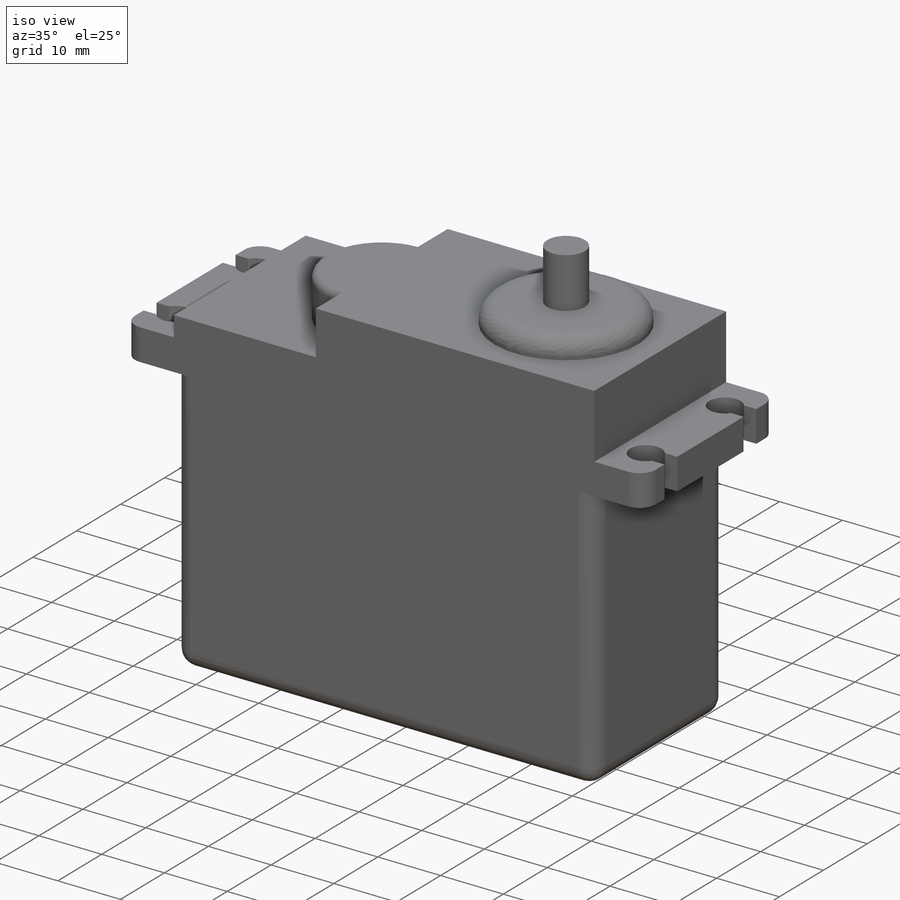
[diagram: iso view]
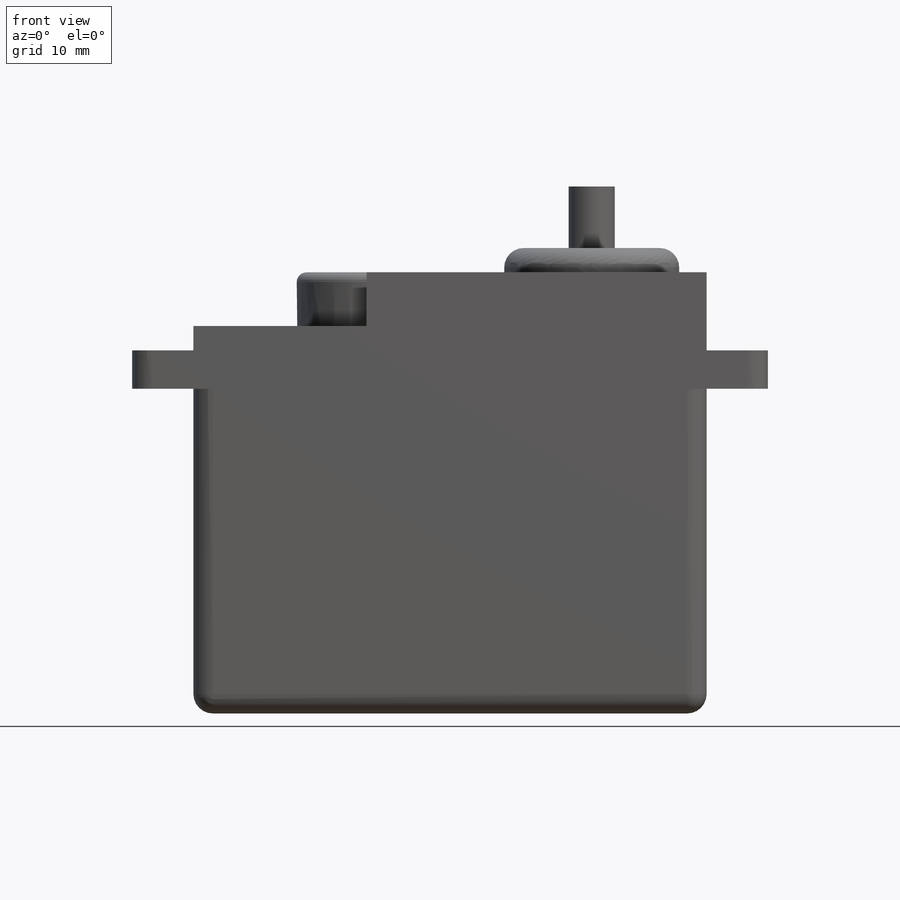
[diagram: front view]
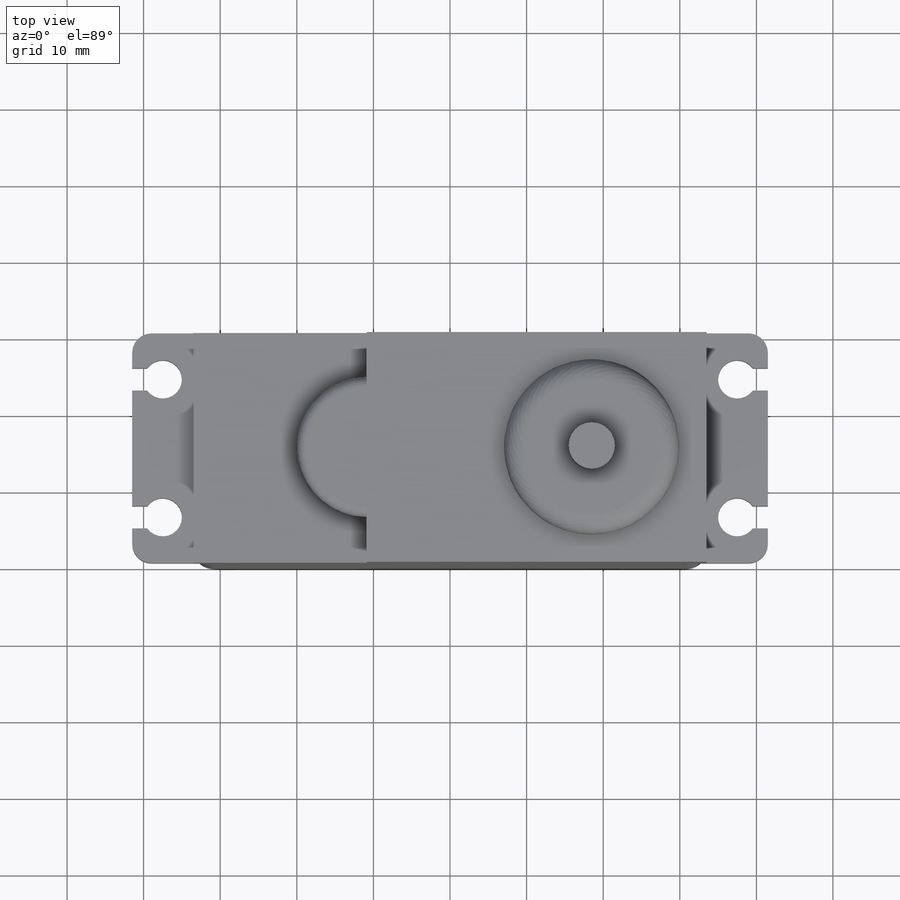
[diagram: top view]
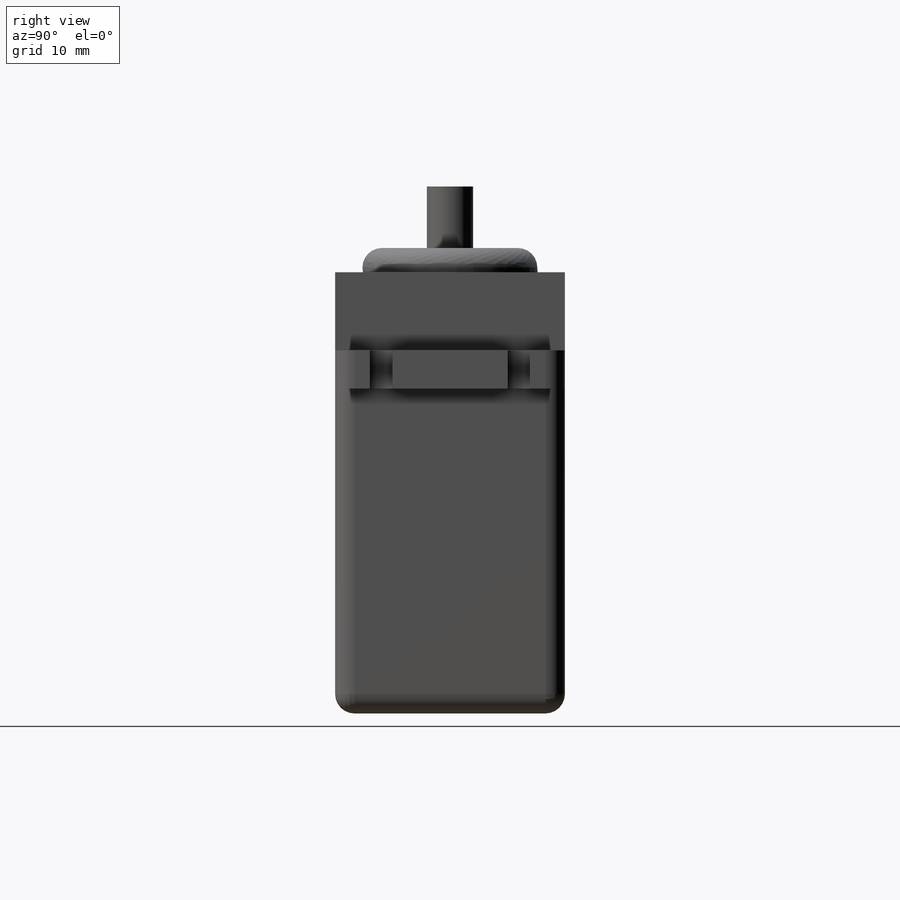
[diagram: right view]
SOLIDWORKS PART (.sldprt)
format: sldprt  version: not decoded by parser v0  size: 317,440 bytes
history: native  units: mm
features: sketch x6, extrude x4, fillet x3, cut_extrude x2, material x1 (+13 scaffold rows collapsed)
feature tree (29):
  scaffold x13  (default folders/planes/origin — collapsed)
  material  "PE Low/Medium Density"
  sketch  "Sketch1"  dims[D1=67.0mm D2=42.4mm D3=83.0mm D4=57.6mm D5=5.0mm]
  extrude  "Extrude1"  Depth=30mm
  fillet  "Fillet1"  Radius=2.54mm
  sketch  "Sketch2"  dims[D2=5.0mm D1=18.0mm D3=4.0mm D4=4.0mm]
  cut_extrude  "Cut-Extrude1"  [1 undecoded]
  sketch  "Sketch3"
  cut_extrude  "Cut-Extrude2"  [1 undecoded]
  sketch  "Sketch4"
  extrude  "Extrude2"  [1 undecoded]
  sketch  "Sketch5"  dims[D1=22.86mm D2=15.0mm]
  extrude  "Extrude3"  Depth=3.175mm
  fillet  "Fillet2"  Radius=2.54mm
  fillet  "Fillet3"  Radius=1.27mm
  sketch  "Sketch6"
  extrude  "Extrude4"  Depth=68.8mm
decode coverage: 9 of 15 modeling features carry decoded parameters
note: 3 parameter values undecoded
summary: no parameter record found for 3 features
note: suppression state not decoded; provenance and decode notes live in map.json
